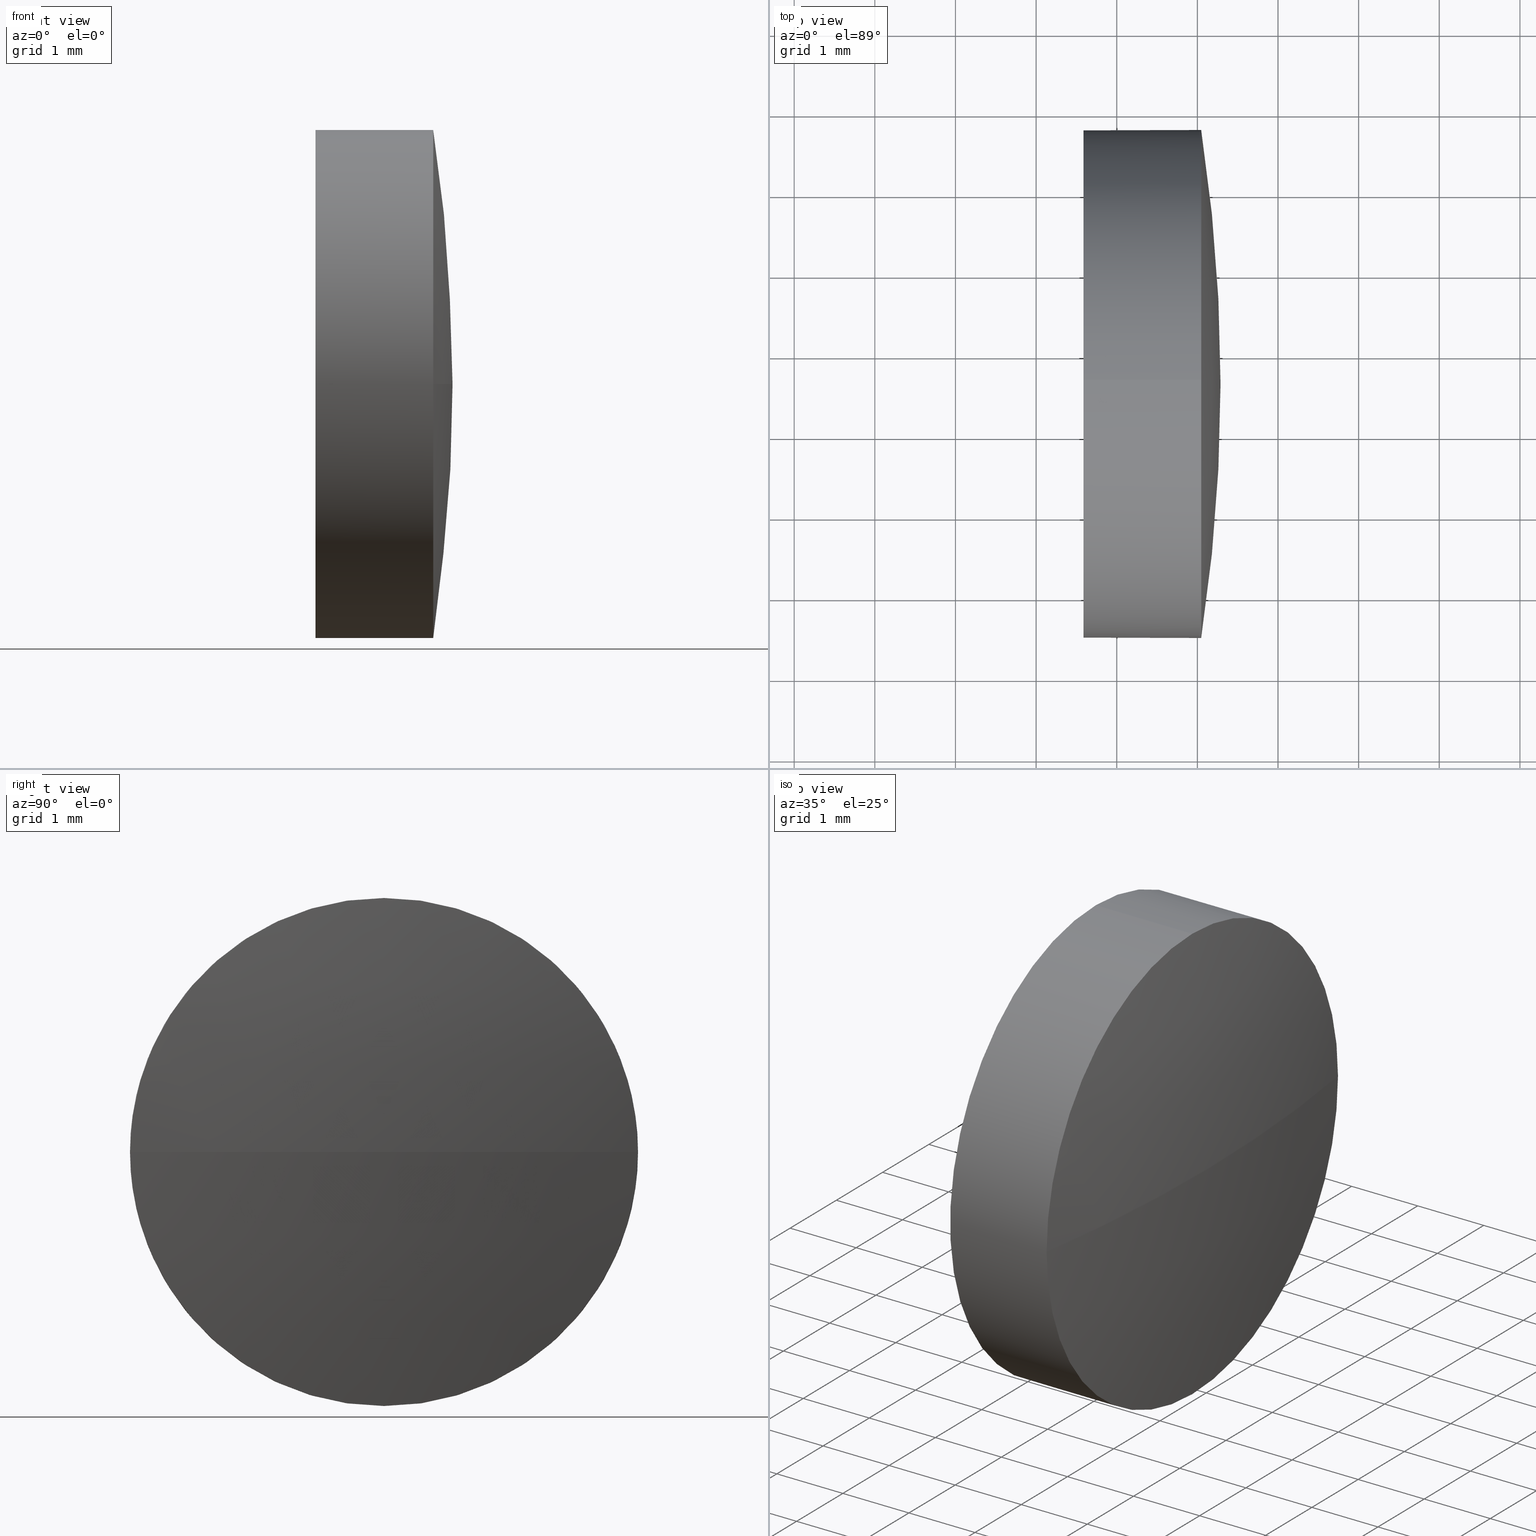
[diagram: canonical four-view strip — front | top / right | iso, engineering-drawing reading convention]
A machine part, canonical four-view strip (front | top / right | iso — engineering-drawing reading convention). The complete STEP part file that produces these views, byte-faithful:
ISO-10303-21;
HEADER;
FILE_DESCRIPTION (( 'STEP AP214' ),
    '1' );
FILE_NAME ('100098.STEP',
    '2019-05-13T06:04:29',
    ( '' ),
    ( '' ),
    'SwSTEP 2.0',
    'SolidWorks 2016',
    '' );
FILE_SCHEMA (( 'AUTOMOTIVE_DESIGN' ));
ENDSEC;

DATA;
#1 = UNCERTAINTY_MEASURE_WITH_UNIT (LENGTH_MEASURE( 1.000000000000000100E-005 ), #11, 'distance_accuracy_value', 'NONE');
#2 = DIRECTION ( 'NONE',  ( 0.0000000000000000000, 0.0000000000000000000, 1.000000000000000000 ) ) ;
#3 = DIRECTION ( 'NONE',  ( -1.000000000000000000, -0.0000000000000000000, -0.0000000000000000000 ) ) ;
#4 = FACE_OUTER_BOUND ( 'NONE', #77, .T. ) ;
#5 = ORIENTED_EDGE ( 'NONE', *, *, #53, .T. ) ;
#6 = ADVANCED_FACE ( 'NONE', ( #126 ), #155, .T. ) ;
#7 = AXIS2_PLACEMENT_3D ( 'NONE', #63, #144, #51 ) ;
#8 = EDGE_CURVE ( 'NONE', #47, #143, #75, .T. ) ;
#9 = VERTEX_POINT ( 'NONE', #120 ) ;
#10 =( NAMED_UNIT ( * ) SI_UNIT ( $, .STERADIAN. ) SOLID_ANGLE_UNIT ( ) );
#11 =( LENGTH_UNIT ( ) NAMED_UNIT ( * ) SI_UNIT ( .MILLI., .METRE. ) );
#12 = SURFACE_STYLE_USAGE ( .BOTH. , #35 ) ;
#13 = SURFACE_SIDE_STYLE ('',( #76 ) ) ;
#14 = DIRECTION ( 'NONE',  ( 1.000000000000000000, 0.0000000000000000000, 0.0000000000000000000 ) ) ;
#15 = CIRCLE ( 'NONE', #32, 3.149999999999986100 ) ;
#16 = ORIENTED_EDGE ( 'NONE', *, *, #26, .T. ) ;
#17 = EDGE_CURVE ( 'NONE', #9, #178, #30, .T. ) ;
#18 = CARTESIAN_POINT ( 'NONE',  ( 623.5874028010093800, 93.63142839999422100, 0.0000000000000000000 ) ) ;
#19 = DIRECTION ( 'NONE',  ( -1.000000000000000000, -0.0000000000000000000, -0.0000000000000000000 ) ) ;
#20 = ADVANCED_FACE ( 'NONE', ( #4 ), #171, .T. ) ;
#21 = CIRCLE ( 'NONE', #158, 3.149999999999986100 ) ;
#22 = PRODUCT_DEFINITION_CONTEXT ( 'detailed design', #117, 'design' ) ;
#23 = CIRCLE ( 'NONE', #88, 3.149999999999986100 ) ;
#24 = DIRECTION ( 'NONE',  ( -1.000000000000000000, 0.0000000000000000000, 0.0000000000000000000 ) ) ;
#25 = EDGE_CURVE ( 'NONE', #9, #143, #96, .T. ) ;
#26 = EDGE_CURVE ( 'NONE', #33, #145, #23, .T. ) ;
#27 = VERTEX_POINT ( 'NONE', #73 ) ;
#28 = DIRECTION ( 'NONE',  ( 0.0000000000000000000, 0.0000000000000000000, -1.000000000000000000 ) ) ;
#29 = CARTESIAN_POINT ( 'NONE',  ( 625.0474028010091800, 90.48142839999432900, 0.0000000000000000000 ) ) ;
#30 = CIRCLE ( 'NONE', #109, 3.149999999999986100 ) ;
#31 = SURFACE_STYLE_USAGE ( .BOTH. , #13 ) ;
#32 = AXIS2_PLACEMENT_3D ( 'NONE', #140, #44, #172 ) ;
#33 = VERTEX_POINT ( 'NONE', #58 ) ;
#34 = CYLINDRICAL_SURFACE ( 'NONE', #142, 3.149999999999986100 ) ;
#35 = SURFACE_SIDE_STYLE ('',( #170 ) ) ;
#36 =( LENGTH_UNIT ( ) NAMED_UNIT ( * ) SI_UNIT ( .MILLI., .METRE. ) );
#37 = AXIS2_PLACEMENT_3D ( 'NONE', #91, #66, #110 ) ;
#38 = ORIENTED_EDGE ( 'NONE', *, *, #26, .F. ) ;
#39 = AXIS2_PLACEMENT_3D ( 'NONE', #139, #60, #74 ) ;
#40 = CARTESIAN_POINT ( 'NONE',  ( 604.4955278010093000, 93.63142839999440500, 0.0000000000000000000 ) ) ;
#41 = CARTESIAN_POINT ( 'NONE',  ( 622.7257746314247700, 93.63142839999422100, 0.0000000000000000000 ) ) ;
#42 = DIRECTION ( 'NONE',  ( 0.0000000000000000000, -1.224646799147353200E-016, 1.000000000000000000 ) ) ;
#43 = CLOSED_SHELL ( 'NONE', ( #45, #6, #61, #20, #173 ) ) ;
#44 = DIRECTION ( 'NONE',  ( -1.000000000000000000, -0.0000000000000000000, -0.0000000000000000000 ) ) ;
#45 = ADVANCED_FACE ( 'NONE', ( #106 ), #34, .T. ) ;
#46 = LINE ( 'NONE', #48, #67 ) ;
#47 = VERTEX_POINT ( 'NONE', #154 ) ;
#48 = CARTESIAN_POINT ( 'NONE',  ( 622.7257746314247700, 93.63142839999422100, -3.149999999999986100 ) ) ;
#49 = DIRECTION ( 'NONE',  ( 0.0000000000000000000, 0.0000000000000000000, 1.000000000000000000 ) ) ;
#50 = CARTESIAN_POINT ( 'NONE',  ( 623.5874028010093800, 93.63142839999422100, 3.149999999999986100 ) ) ;
#51 = DIRECTION ( 'NONE',  ( 0.0000000000000000000, 0.0000000000000000000, 1.000000000000000000 ) ) ;
#52 = STYLED_ITEM ( 'NONE', ( #57 ), #186 ) ;
#53 = EDGE_CURVE ( 'NONE', #27, #178, #105, .T. ) ;
#54 = FACE_OUTER_BOUND ( 'NONE', #103, .T. ) ;
#55 = ORIENTED_EDGE ( 'NONE', *, *, #25, .F. ) ;
#56 = DIRECTION ( 'NONE',  ( -1.000000000000000000, -0.0000000000000000000, -0.0000000000000000000 ) ) ;
#57 = PRESENTATION_STYLE_ASSIGNMENT (( #31 ) ) ;
#58 = CARTESIAN_POINT ( 'NONE',  ( 625.0474028010091800, 93.63142839999422100, -3.149999999999986100 ) ) ;
#59 = VECTOR ( 'NONE', #3, 1000.000000000000000 ) ;
#60 = DIRECTION ( 'NONE',  ( 0.0000000000000000000, 0.0000000000000000000, 1.000000000000000000 ) ) ;
#61 = ADVANCED_FACE ( 'NONE', ( #181 ), #176, .T. ) ;
#62 = ORIENTED_EDGE ( 'NONE', *, *, #114, .T. ) ;
#63 = CARTESIAN_POINT ( 'NONE',  ( 625.0474028010091800, 93.63142839999422100, 0.0000000000000000000 ) ) ;
#64 = PRODUCT_DEFINITION_SHAPE ( 'NONE', 'NONE',  #97 ) ;
#65 = EDGE_LOOP ( 'NONE', ( #149, #118, #38, #124 ) ) ;
#66 = DIRECTION ( 'NONE',  ( 1.000000000000000000, 0.0000000000000000000, 0.0000000000000000000 ) ) ;
#67 = VECTOR ( 'NONE', #128, 1000.000000000000000 ) ;
#68 = ORIENTED_EDGE ( 'NONE', *, *, #87, .F. ) ;
#69 = ORIENTED_EDGE ( 'NONE', *, *, #114, .F. ) ;
#70 = DIRECTION ( 'NONE',  ( -1.000000000000000000, -0.0000000000000000000, -0.0000000000000000000 ) ) ;
#71 = CARTESIAN_POINT ( 'NONE',  ( 622.7257746314247700, 93.63142839999422100, 0.0000000000000000000 ) ) ;
#72 = EDGE_LOOP ( 'NONE', ( #68, #5, #141, #137 ) ) ;
#73 = CARTESIAN_POINT ( 'NONE',  ( 625.2874028010093100, 93.63142839999440500, 0.0000000000000000000 ) ) ;
#74 = DIRECTION ( 'NONE',  ( 0.0000000000000000000, -1.000000000000000000, 0.0000000000000000000 ) ) ;
#75 = CIRCLE ( 'NONE', #99, 3.149999999999986100 ) ;
#76 = SURFACE_STYLE_FILL_AREA ( #94 ) ;
#77 = EDGE_LOOP ( 'NONE', ( #69, #16, #151, #113, #98 ) ) ;
#78 = CARTESIAN_POINT ( 'NONE',  ( 625.0474028010091800, 96.78142839999429700, 3.857637417314025600E-016 ) ) ;
#79 = CARTESIAN_POINT ( 'NONE',  ( 625.0474028010091800, 93.63142839999422100, 0.0000000000000000000 ) ) ;
#80 =( NAMED_UNIT ( * ) PLANE_ANGLE_UNIT ( ) SI_UNIT ( $, .RADIAN. ) );
#81 = EDGE_CURVE ( 'NONE', #143, #47, #15, .T. ) ;
#82 = COLOUR_RGB ( '',1.000000000000000000, 1.000000000000000000, 1.000000000000000000 ) ;
#83 = FILL_AREA_STYLE_COLOUR ( '', #125 ) ;
#84 = SHAPE_DEFINITION_REPRESENTATION ( #64, #186 ) ;
#85 = ORIENTED_EDGE ( 'NONE', *, *, #93, .T. ) ;
#86 = PRESENTATION_LAYER_ASSIGNMENT (  '', '', ( #167 ) ) ;
#87 = EDGE_CURVE ( 'NONE', #27, #145, #95, .T. ) ;
#88 = AXIS2_PLACEMENT_3D ( 'NONE', #180, #165, #179 ) ;
#89 = CARTESIAN_POINT ( 'NONE',  ( 604.4955278010093000, 93.63142839999440500, 0.0000000000000000000 ) ) ;
#90 = ORIENTED_EDGE ( 'NONE', *, *, #8, .T. ) ;
#91 = CARTESIAN_POINT ( 'NONE',  ( 623.5874028010093800, 93.63142839999422100, 0.0000000000000000000 ) ) ;
#92 = MECHANICAL_DESIGN_GEOMETRIC_PRESENTATION_REPRESENTATION (  '', ( #167 ), #107 ) ;
#93 = EDGE_CURVE ( 'NONE', #178, #33, #21, .T. ) ;
#94 = FILL_AREA_STYLE ('',( #83 ) ) ;
#95 = CIRCLE ( 'NONE', #136, 20.79187499999990500 ) ;
#96 = LINE ( 'NONE', #121, #59 ) ;
#97 = PRODUCT_DEFINITION ( 'δ֪', '', #129, #22 ) ;
#98 = ORIENTED_EDGE ( 'NONE', *, *, #8, .F. ) ;
#99 = AXIS2_PLACEMENT_3D ( 'NONE', #18, #56, #2 ) ;
#100 = EDGE_LOOP ( 'NONE', ( #85, #62, #159, #55, #182 ) ) ;
#101 = AXIS2_PLACEMENT_3D ( 'NONE', #169, #42, #156 ) ;
#102 = MANIFOLD_SOLID_BREP ( '��ת1', #43 ) ;
#103 = EDGE_LOOP ( 'NONE', ( #183, #90 ) ) ;
#104 = PRESENTATION_LAYER_ASSIGNMENT (  '', '', ( #52 ) ) ;
#105 = CIRCLE ( 'NONE', #101, 20.79187499999989100 ) ;
#106 = FACE_OUTER_BOUND ( 'NONE', #100, .T. ) ;
#107 =( GEOMETRIC_REPRESENTATION_CONTEXT ( 3 ) GLOBAL_UNCERTAINTY_ASSIGNED_CONTEXT ( ( #138 ) ) GLOBAL_UNIT_ASSIGNED_CONTEXT ( ( #127, #80, #10 ) ) REPRESENTATION_CONTEXT ( 'NONE', 'WORKASPACE' ) );
#108 = UNCERTAINTY_MEASURE_WITH_UNIT (LENGTH_MEASURE( 1.000000000000000100E-005 ), #36, 'distance_accuracy_value', 'NONE');
#109 = AXIS2_PLACEMENT_3D ( 'NONE', #166, #135, #163 ) ;
#110 = DIRECTION ( 'NONE',  ( 0.0000000000000000000, 0.0000000000000000000, -1.000000000000000000 ) ) ;
#111 = APPLICATION_CONTEXT ( 'automotive_design' ) ;
#112 = PRODUCT ( '100098', '100098', '', ( #133 ) ) ;
#113 = ORIENTED_EDGE ( 'NONE', *, *, #25, .T. ) ;
#114 = EDGE_CURVE ( 'NONE', #33, #47, #46, .T. ) ;
#115 =( NAMED_UNIT ( * ) PLANE_ANGLE_UNIT ( ) SI_UNIT ( $, .RADIAN. ) );
#116 = PRESENTATION_STYLE_ASSIGNMENT (( #12 ) ) ;
#117 = APPLICATION_CONTEXT ( 'automotive_design' ) ;
#118 = ORIENTED_EDGE ( 'NONE', *, *, #87, .T. ) ;
#119 = DIRECTION ( 'NONE',  ( 0.0000000000000000000, 0.0000000000000000000, 1.000000000000000000 ) ) ;
#120 = CARTESIAN_POINT ( 'NONE',  ( 625.0474028010091800, 93.63142839999422100, 3.149999999999986100 ) ) ;
#121 = CARTESIAN_POINT ( 'NONE',  ( 622.7257746314247700, 93.63142839999422100, 3.149999999999986100 ) ) ;
#122 = EDGE_CURVE ( 'NONE', #145, #9, #123, .T. ) ;
#123 = CIRCLE ( 'NONE', #7, 3.149999999999986100 ) ;
#124 = ORIENTED_EDGE ( 'NONE', *, *, #93, .F. ) ;
#125 = COLOUR_RGB ( '',1.000000000000000000, 1.000000000000000000, 1.000000000000000000 ) ;
#126 = FACE_OUTER_BOUND ( 'NONE', #72, .T. ) ;
#127 =( LENGTH_UNIT ( ) NAMED_UNIT ( * ) SI_UNIT ( .MILLI., .METRE. ) );
#128 = DIRECTION ( 'NONE',  ( -1.000000000000000000, -0.0000000000000000000, -0.0000000000000000000 ) ) ;
#129 = PRODUCT_DEFINITION_FORMATION_WITH_SPECIFIED_SOURCE ( '�κ�', '', #112, .NOT_KNOWN. ) ;
#130 = PLANE ( 'NONE',  #37 ) ;
#131 = AXIS2_PLACEMENT_3D ( 'NONE', #40, #152, #168 ) ;
#132 = APPLICATION_PROTOCOL_DEFINITION ( 'draft international standard', 'automotive_design', 1998, #117 ) ;
#133 = PRODUCT_CONTEXT ( 'NONE', #111, 'mechanical' ) ;
#134 =( GEOMETRIC_REPRESENTATION_CONTEXT ( 3 ) GLOBAL_UNCERTAINTY_ASSIGNED_CONTEXT ( ( #1 ) ) GLOBAL_UNIT_ASSIGNED_CONTEXT ( ( #11, #184, #147 ) ) REPRESENTATION_CONTEXT ( 'NONE', 'WORKASPACE' ) );
#135 = DIRECTION ( 'NONE',  ( -1.000000000000000000, -0.0000000000000000000, -0.0000000000000000000 ) ) ;
#136 = AXIS2_PLACEMENT_3D ( 'NONE', #89, #28, #24 ) ;
#137 = ORIENTED_EDGE ( 'NONE', *, *, #122, .F. ) ;
#138 = UNCERTAINTY_MEASURE_WITH_UNIT (LENGTH_MEASURE( 1.000000000000000100E-005 ), #127, 'distance_accuracy_value', 'NONE');
#139 = CARTESIAN_POINT ( 'NONE',  ( 604.4955278010093000, 93.63142839999440500, 0.0000000000000000000 ) ) ;
#140 = CARTESIAN_POINT ( 'NONE',  ( 623.5874028010093800, 93.63142839999422100, 0.0000000000000000000 ) ) ;
#141 = ORIENTED_EDGE ( 'NONE', *, *, #17, .F. ) ;
#142 = AXIS2_PLACEMENT_3D ( 'NONE', #41, #19, #119 ) ;
#143 = VERTEX_POINT ( 'NONE', #50 ) ;
#144 = DIRECTION ( 'NONE',  ( -1.000000000000000000, -0.0000000000000000000, -0.0000000000000000000 ) ) ;
#145 = VERTEX_POINT ( 'NONE', #29 ) ;
#146 = AXIS2_PLACEMENT_3D ( 'NONE', #71, #70, #177 ) ;
#147 =( NAMED_UNIT ( * ) SI_UNIT ( $, .STERADIAN. ) SOLID_ANGLE_UNIT ( ) );
#148 = MECHANICAL_DESIGN_GEOMETRIC_PRESENTATION_REPRESENTATION (  '', ( #52 ), #157 ) ;
#149 = ORIENTED_EDGE ( 'NONE', *, *, #53, .F. ) ;
#150 = APPLICATION_PROTOCOL_DEFINITION ( 'draft international standard', 'automotive_design', 1998, #111 ) ;
#151 = ORIENTED_EDGE ( 'NONE', *, *, #122, .T. ) ;
#152 = DIRECTION ( 'NONE',  ( 0.0000000000000000000, 0.0000000000000000000, 1.000000000000000000 ) ) ;
#153 = AXIS2_PLACEMENT_3D ( 'NONE', #185, #162, #14 ) ;
#154 = CARTESIAN_POINT ( 'NONE',  ( 623.5874028010093800, 93.63142839999422100, -3.149999999999986100 ) ) ;
#155 = SPHERICAL_SURFACE ( 'NONE', #131, 20.79187499999988400 ) ;
#156 = DIRECTION ( 'NONE',  ( 0.0000000000000000000, -1.000000000000000000, -1.224646799147352700E-016 ) ) ;
#157 =( GEOMETRIC_REPRESENTATION_CONTEXT ( 3 ) GLOBAL_UNCERTAINTY_ASSIGNED_CONTEXT ( ( #108 ) ) GLOBAL_UNIT_ASSIGNED_CONTEXT ( ( #36, #115, #161 ) ) REPRESENTATION_CONTEXT ( 'NONE', 'WORKASPACE' ) );
#158 = AXIS2_PLACEMENT_3D ( 'NONE', #79, #160, #49 ) ;
#159 = ORIENTED_EDGE ( 'NONE', *, *, #81, .F. ) ;
#160 = DIRECTION ( 'NONE',  ( -1.000000000000000000, -0.0000000000000000000, -0.0000000000000000000 ) ) ;
#161 =( NAMED_UNIT ( * ) SI_UNIT ( $, .STERADIAN. ) SOLID_ANGLE_UNIT ( ) );
#162 = DIRECTION ( 'NONE',  ( 0.0000000000000000000, 0.0000000000000000000, 1.000000000000000000 ) ) ;
#163 = DIRECTION ( 'NONE',  ( 0.0000000000000000000, 0.0000000000000000000, 1.000000000000000000 ) ) ;
#164 = PRODUCT_RELATED_PRODUCT_CATEGORY ( 'part', '', ( #112 ) ) ;
#165 = DIRECTION ( 'NONE',  ( -1.000000000000000000, -0.0000000000000000000, -0.0000000000000000000 ) ) ;
#166 = CARTESIAN_POINT ( 'NONE',  ( 625.0474028010091800, 93.63142839999422100, 0.0000000000000000000 ) ) ;
#167 = STYLED_ITEM ( 'NONE', ( #116 ), #102 ) ;
#168 = DIRECTION ( 'NONE',  ( 0.0000000000000000000, -1.000000000000000000, 0.0000000000000000000 ) ) ;
#169 = CARTESIAN_POINT ( 'NONE',  ( 604.4955278010093000, 93.63142839999440500, 0.0000000000000000000 ) ) ;
#170 = SURFACE_STYLE_FILL_AREA ( #175 ) ;
#171 = CYLINDRICAL_SURFACE ( 'NONE', #146, 3.149999999999986100 ) ;
#172 = DIRECTION ( 'NONE',  ( 0.0000000000000000000, 0.0000000000000000000, 1.000000000000000000 ) ) ;
#173 = ADVANCED_FACE ( 'NONE', ( #54 ), #130, .F. ) ;
#174 = FILL_AREA_STYLE_COLOUR ( '', #82 ) ;
#175 = FILL_AREA_STYLE ('',( #174 ) ) ;
#176 = SPHERICAL_SURFACE ( 'NONE', #39, 20.79187499999988400 ) ;
#177 = DIRECTION ( 'NONE',  ( 0.0000000000000000000, 0.0000000000000000000, 1.000000000000000000 ) ) ;
#178 = VERTEX_POINT ( 'NONE', #78 ) ;
#179 = DIRECTION ( 'NONE',  ( 0.0000000000000000000, 0.0000000000000000000, 1.000000000000000000 ) ) ;
#180 = CARTESIAN_POINT ( 'NONE',  ( 625.0474028010091800, 93.63142839999422100, 0.0000000000000000000 ) ) ;
#181 = FACE_OUTER_BOUND ( 'NONE', #65, .T. ) ;
#182 = ORIENTED_EDGE ( 'NONE', *, *, #17, .T. ) ;
#183 = ORIENTED_EDGE ( 'NONE', *, *, #81, .T. ) ;
#184 =( NAMED_UNIT ( * ) PLANE_ANGLE_UNIT ( ) SI_UNIT ( $, .RADIAN. ) );
#185 = CARTESIAN_POINT ( 'NONE',  ( 0.0000000000000000000, 0.0000000000000000000, 0.0000000000000000000 ) ) ;
#186 = ADVANCED_BREP_SHAPE_REPRESENTATION ( '100098', ( #102, #153 ), #134 ) ;
ENDSEC;
END-ISO-10303-21;
